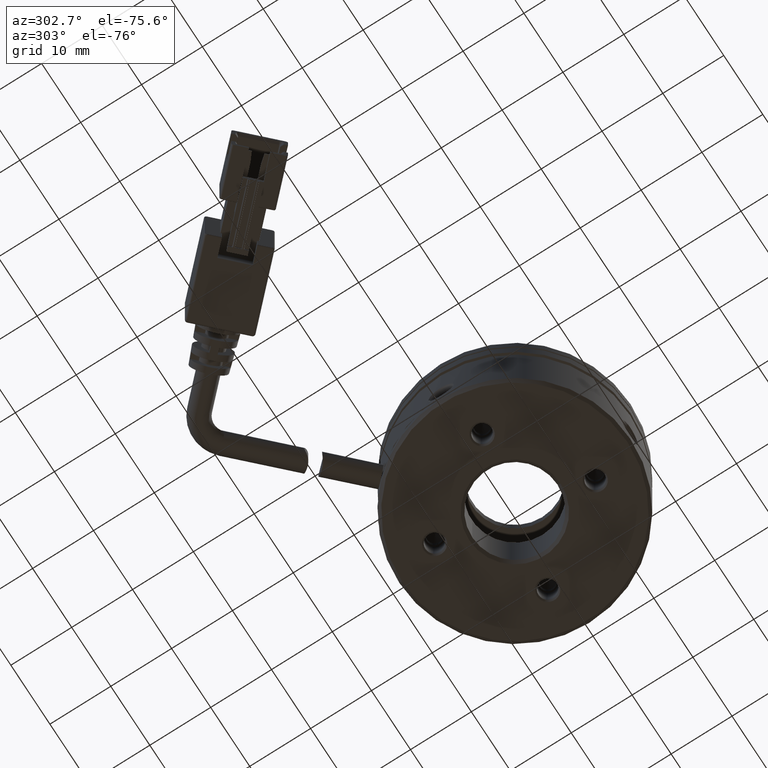
[diagram: clean part render]
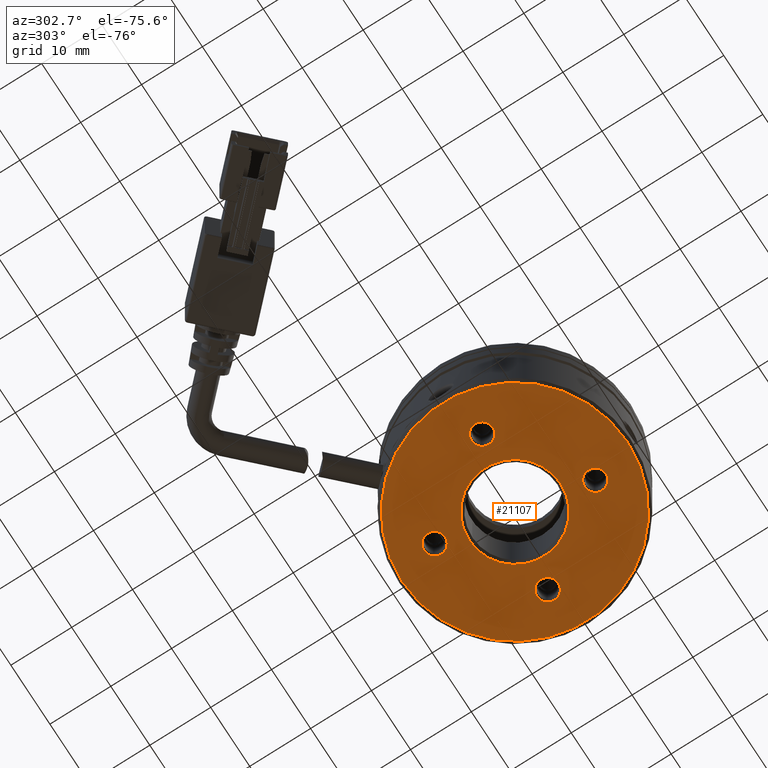
[diagram: same view with one face highlighted and labeled with its STEP entity id]
A machine part, auxiliary view. The second image highlights one B-rep face of the part: STEP entity #21107.
In plain terms, the highlighted planar face has unit normal (-0, 0, -1).
Its self-contained STEP definition (entity closure, byte-faithful):
#48 = AXIS2_PLACEMENT_3D ( 'NONE', #17448, #6035, #19380 ) ;
#166 = VERTEX_POINT ( 'NONE', #12440 ) ;
#288 = AXIS2_PLACEMENT_3D ( 'NONE', #7912, #21292, #9808 ) ;
#293 = CARTESIAN_POINT ( 'NONE',  ( 1.022871801016844700E-014, -1.279201757532100700E-014, -8.835083653659797400 ) ) ;
#349 = FACE_BOUND ( 'NONE', #7488, .T. ) ;
#452 = EDGE_CURVE ( 'NONE', #15252, #17644, #22348, .T. ) ;
#711 = EDGE_LOOP ( 'NONE', ( #20642, #5709 ) ) ;
#1377 = ORIENTED_EDGE ( 'NONE', *, *, #11815, .T. ) ;
#1401 = DIRECTION ( 'NONE',  ( 0.0000000000000000000, 1.000000000000000000, 0.0000000000000000000 ) ) ;
#1450 = CARTESIAN_POINT ( 'NONE',  ( 2.186826305905702000, -11.79905889076748200, -8.835083653659797400 ) ) ;
#1832 = AXIS2_PLACEMENT_3D ( 'NONE', #17272, #5842, #19183 ) ;
#1868 = CARTESIAN_POINT ( 'NONE',  ( 11.79905889076748700, 2.186826305905637600, -8.835083653659797400 ) ) ;
#2194 = DIRECTION ( 'NONE',  ( 1.249000902703300400E-016, -1.000000000000000000, 0.0000000000000000000 ) ) ;
#2648 = VERTEX_POINT ( 'NONE', #17656 ) ;
#2881 = ORIENTED_EDGE ( 'NONE', *, *, #10894, .T. ) ;
#3253 = ORIENTED_EDGE ( 'NONE', *, *, #22698, .T. ) ;
#3427 = DIRECTION ( 'NONE',  ( -2.478176394278822600E-016, 1.000000000000000000, 0.0000000000000000000 ) ) ;
#3728 = CIRCLE ( 'NONE', #21275, 1.749999999958618000 ) ;
#3820 = DIRECTION ( 'NONE',  ( 0.0000000000000000000, 1.000000000000000000, 0.0000000000000000000 ) ) ;
#3880 = DIRECTION ( 'NONE',  ( 3.278078698200888900E-017, -1.770842713494091000E-030, 1.000000000000000000 ) ) ;
#3984 = AXIS2_PLACEMENT_3D ( 'NONE', #18790, #7347, #20737 ) ;
#5478 = FACE_BOUND ( 'NONE', #14588, .T. ) ;
#5573 = ORIENTED_EDGE ( 'NONE', *, *, #12333, .T. ) ;
#5709 = ORIENTED_EDGE ( 'NONE', *, *, #7983, .T. ) ;
#5842 = DIRECTION ( 'NONE',  ( 3.278078698200888900E-017, -1.770842713494091000E-030, 1.000000000000000000 ) ) ;
#6035 = DIRECTION ( 'NONE',  ( -3.278078698200888900E-017, 1.770842713494091000E-030, -1.000000000000000000 ) ) ;
#6083 = CARTESIAN_POINT ( 'NONE',  ( 1.022871801016844700E-014, -1.279201757532100700E-014, -8.835083653659797400 ) ) ;
#6214 = AXIS2_PLACEMENT_3D ( 'NONE', #1450, #14860, #3427 ) ;
#6496 = CARTESIAN_POINT ( 'NONE',  ( 2.186826305905702500, -13.54905889074895100, -8.835083653659797400 ) ) ;
#7198 = DIRECTION ( 'NONE',  ( 3.278078698200888900E-017, -1.770842713494091000E-030, 1.000000000000000000 ) ) ;
#7218 = AXIS2_PLACEMENT_3D ( 'NONE', #22193, #14051, #1401 ) ;
#7347 = DIRECTION ( 'NONE',  ( 3.278078698200888900E-017, -1.770842713494091000E-030, 1.000000000000000000 ) ) ;
#7488 = EDGE_LOOP ( 'NONE', ( #3253, #18421 ) ) ;
#7853 = PLANE ( 'NONE',  #48 ) ;
#7912 = CARTESIAN_POINT ( 'NONE',  ( 11.79905889076748700, 2.186826305905637600, -8.835083653659797400 ) ) ;
#7962 = EDGE_CURVE ( 'NONE', #20233, #16176, #10348, .T. ) ;
#7965 = DIRECTION ( 'NONE',  ( 3.278078698200888900E-017, -1.770842713494091000E-030, 1.000000000000000000 ) ) ;
#7983 = EDGE_CURVE ( 'NONE', #166, #2648, #14849, .T. ) ;
#7984 = DIRECTION ( 'NONE',  ( 1.249000902703300400E-016, -1.000000000000000000, 0.0000000000000000000 ) ) ;
#8276 = ORIENTED_EDGE ( 'NONE', *, *, #452, .T. ) ;
#8365 = CARTESIAN_POINT ( 'NONE',  ( -2.186826305905681200, 11.79905889076745700, -8.835083653625805100 ) ) ;
#9180 = CIRCLE ( 'NONE', #22472, 7.500000000050022200 ) ;
#9247 = VERTEX_POINT ( 'NONE', #24739 ) ;
#9654 = EDGE_LOOP ( 'NONE', ( #1377, #15480 ) ) ;
#9763 = CARTESIAN_POINT ( 'NONE',  ( -11.79905889076748200, -0.4368263059291305200, -8.835083653659797400 ) ) ;
#9808 = DIRECTION ( 'NONE',  ( 0.0000000000000000000, 1.000000000000000000, 0.0000000000000000000 ) ) ;
#9920 = FACE_BOUND ( 'NONE', #711, .T. ) ;
#9943 = CIRCLE ( 'NONE', #16021, 1.749999999976450200 ) ;
#10165 = AXIS2_PLACEMENT_3D ( 'NONE', #6083, #19428, #7984 ) ;
#10231 = CARTESIAN_POINT ( 'NONE',  ( -2.186826305905681600, 13.54905889072607500, -8.835083653625805100 ) ) ;
#10284 = DIRECTION ( 'NONE',  ( -2.478176394311182700E-016, 1.000000000000000000, 0.0000000000000000000 ) ) ;
#10348 = CIRCLE ( 'NONE', #20275, 1.749999999997546900 ) ;
#10556 = FACE_BOUND ( 'NONE', #19642, .T. ) ;
#10808 = CIRCLE ( 'NONE', #10165, 18.49999999999999600 ) ;
#10894 = EDGE_CURVE ( 'NONE', #17305, #19576, #11288, .T. ) ;
#11288 = CIRCLE ( 'NONE', #6214, 1.749999999981469500 ) ;
#11815 = EDGE_CURVE ( 'NONE', #13134, #9247, #3728, .T. ) ;
#11848 = CIRCLE ( 'NONE', #20198, 18.49999999999999600 ) ;
#12022 = CIRCLE ( 'NONE', #3984, 1.749999999981469500 ) ;
#12219 = CARTESIAN_POINT ( 'NONE',  ( 11.79905889076748700, 0.4368263059080909100, -8.835083653659797400 ) ) ;
#12281 = EDGE_CURVE ( 'NONE', #17644, #15252, #9943, .T. ) ;
#12333 = EDGE_CURVE ( 'NONE', #19576, #17305, #12022, .T. ) ;
#12440 = CARTESIAN_POINT ( 'NONE',  ( 1.208395378656881000E-014, -7.500000000050035500, -8.835083653659797400 ) ) ;
#13134 = VERTEX_POINT ( 'NONE', #10231 ) ;
#13667 = DIRECTION ( 'NONE',  ( -3.278078698200888900E-017, 1.770842713494091000E-030, -1.000000000000000000 ) ) ;
#13718 = CARTESIAN_POINT ( 'NONE',  ( -11.79905889076748200, -3.936826305882030800, -8.835083653659797400 ) ) ;
#13844 = EDGE_LOOP ( 'NONE', ( #18750, #16108 ) ) ;
#14051 = DIRECTION ( 'NONE',  ( 3.278078698200888900E-017, -1.770842713494091000E-030, 1.000000000000000000 ) ) ;
#14588 = EDGE_LOOP ( 'NONE', ( #5573, #2881 ) ) ;
#14697 = VERTEX_POINT ( 'NONE', #17432 ) ;
#14701 = EDGE_CURVE ( 'NONE', #23665, #14697, #11848, .T. ) ;
#14849 = CIRCLE ( 'NONE', #1832, 7.500000000050022200 ) ;
#14860 = DIRECTION ( 'NONE',  ( 3.278078698200888900E-017, -1.770842713494091000E-030, 1.000000000000000000 ) ) ;
#14977 = CIRCLE ( 'NONE', #288, 1.749999999997546900 ) ;
#15048 = FACE_OUTER_BOUND ( 'NONE', #13844, .T. ) ;
#15252 = VERTEX_POINT ( 'NONE', #13718 ) ;
#15290 = DIRECTION ( 'NONE',  ( 3.278078698200888900E-017, -1.770842713494091000E-030, 1.000000000000000000 ) ) ;
#15330 = CARTESIAN_POINT ( 'NONE',  ( 1.253936968016955200E-014, -18.50000000000001100, -8.835083653659797400 ) ) ;
#15349 = CARTESIAN_POINT ( 'NONE',  ( -2.186826305905681200, 11.79905889076745700, -8.835083653625805100 ) ) ;
#15460 = ORIENTED_EDGE ( 'NONE', *, *, #12281, .T. ) ;
#15480 = ORIENTED_EDGE ( 'NONE', *, *, #23204, .T. ) ;
#16021 = AXIS2_PLACEMENT_3D ( 'NONE', #18649, #7198, #20569 ) ;
#16108 = ORIENTED_EDGE ( 'NONE', *, *, #21572, .T. ) ;
#16176 = VERTEX_POINT ( 'NONE', #23112 ) ;
#16696 = EDGE_CURVE ( 'NONE', #2648, #166, #9180, .T. ) ;
#17249 = DIRECTION ( 'NONE',  ( -2.478176394311182700E-016, 1.000000000000000000, 0.0000000000000000000 ) ) ;
#17272 = CARTESIAN_POINT ( 'NONE',  ( 1.022871801016844700E-014, -1.279201757532100700E-014, -8.835083653659797400 ) ) ;
#17305 = VERTEX_POINT ( 'NONE', #6496 ) ;
#17432 = CARTESIAN_POINT ( 'NONE',  ( 1.019124926274654600E-014, 18.49999999999998200, -8.835083653659797400 ) ) ;
#17448 = CARTESIAN_POINT ( 'NONE',  ( 9.354417378276136100E-015, 6.999999999999986700, -8.835083653659797400 ) ) ;
#17644 = VERTEX_POINT ( 'NONE', #9763 ) ;
#17656 = CARTESIAN_POINT ( 'NONE',  ( 9.291967333134723300E-015, 7.500000000050008900, -8.835083653659797400 ) ) ;
#18421 = ORIENTED_EDGE ( 'NONE', *, *, #7962, .T. ) ;
#18649 = CARTESIAN_POINT ( 'NONE',  ( -11.79905889076748200, -2.186826305905580800, -8.835083653659797400 ) ) ;
#18750 = ORIENTED_EDGE ( 'NONE', *, *, #14701, .T. ) ;
#18790 = CARTESIAN_POINT ( 'NONE',  ( 2.186826305905702000, -11.79905889076748200, -8.835083653659797400 ) ) ;
#19183 = DIRECTION ( 'NONE',  ( -1.249000902703301100E-016, 1.000000000000000000, 0.0000000000000000000 ) ) ;
#19371 = AXIS2_PLACEMENT_3D ( 'NONE', #15349, #3880, #17249 ) ;
#19380 = DIRECTION ( 'NONE',  ( -1.249000902703300900E-016, 1.000000000000000000, 1.774937036747276200E-030 ) ) ;
#19411 = CARTESIAN_POINT ( 'NONE',  ( 1.022871801016844700E-014, -1.279201757532100700E-014, -8.835083653659797400 ) ) ;
#19428 = DIRECTION ( 'NONE',  ( -3.278078698200888900E-017, 1.770842713494091000E-030, -1.000000000000000000 ) ) ;
#19576 = VERTEX_POINT ( 'NONE', #21684 ) ;
#19642 = EDGE_LOOP ( 'NONE', ( #15460, #8276 ) ) ;
#20104 = FACE_BOUND ( 'NONE', #9654, .T. ) ;
#20198 = AXIS2_PLACEMENT_3D ( 'NONE', #293, #13667, #2194 ) ;
#20233 = VERTEX_POINT ( 'NONE', #12219 ) ;
#20275 = AXIS2_PLACEMENT_3D ( 'NONE', #1868, #15290, #3820 ) ;
#20569 = DIRECTION ( 'NONE',  ( 0.0000000000000000000, 1.000000000000000000, 0.0000000000000000000 ) ) ;
#20642 = ORIENTED_EDGE ( 'NONE', *, *, #16696, .T. ) ;
#20737 = DIRECTION ( 'NONE',  ( -2.478176394278822600E-016, 1.000000000000000000, 0.0000000000000000000 ) ) ;
#21107 = ADVANCED_FACE ( 'NONE', ( #20104, #349, #5478, #10556, #15048, #9920 ), #7853, .T. ) ;
#21275 = AXIS2_PLACEMENT_3D ( 'NONE', #8365, #21692, #10284 ) ;
#21292 = DIRECTION ( 'NONE',  ( 3.278078698200888900E-017, -1.770842713494091000E-030, 1.000000000000000000 ) ) ;
#21339 = DIRECTION ( 'NONE',  ( -1.249000902703301100E-016, 1.000000000000000000, 0.0000000000000000000 ) ) ;
#21572 = EDGE_CURVE ( 'NONE', #14697, #23665, #10808, .T. ) ;
#21684 = CARTESIAN_POINT ( 'NONE',  ( 2.186826305905701600, -10.04905889078601300, -8.835083653659797400 ) ) ;
#21692 = DIRECTION ( 'NONE',  ( 3.278078698200888900E-017, -1.770842713494091000E-030, 1.000000000000000000 ) ) ;
#22193 = CARTESIAN_POINT ( 'NONE',  ( -11.79905889076748200, -2.186826305905580800, -8.835083653659797400 ) ) ;
#22348 = CIRCLE ( 'NONE', #7218, 1.749999999976450200 ) ;
#22472 = AXIS2_PLACEMENT_3D ( 'NONE', #19411, #7965, #21339 ) ;
#22698 = EDGE_CURVE ( 'NONE', #16176, #20233, #14977, .T. ) ;
#23112 = CARTESIAN_POINT ( 'NONE',  ( 11.79905889076748700, 3.936826305903184900, -8.835083653659797400 ) ) ;
#23204 = EDGE_CURVE ( 'NONE', #9247, #13134, #24120, .T. ) ;
#23665 = VERTEX_POINT ( 'NONE', #15330 ) ;
#24120 = CIRCLE ( 'NONE', #19371, 1.749999999958618000 ) ;
#24739 = CARTESIAN_POINT ( 'NONE',  ( -2.186826305905680700, 10.04905889080883900, -8.835083653625805100 ) ) ;